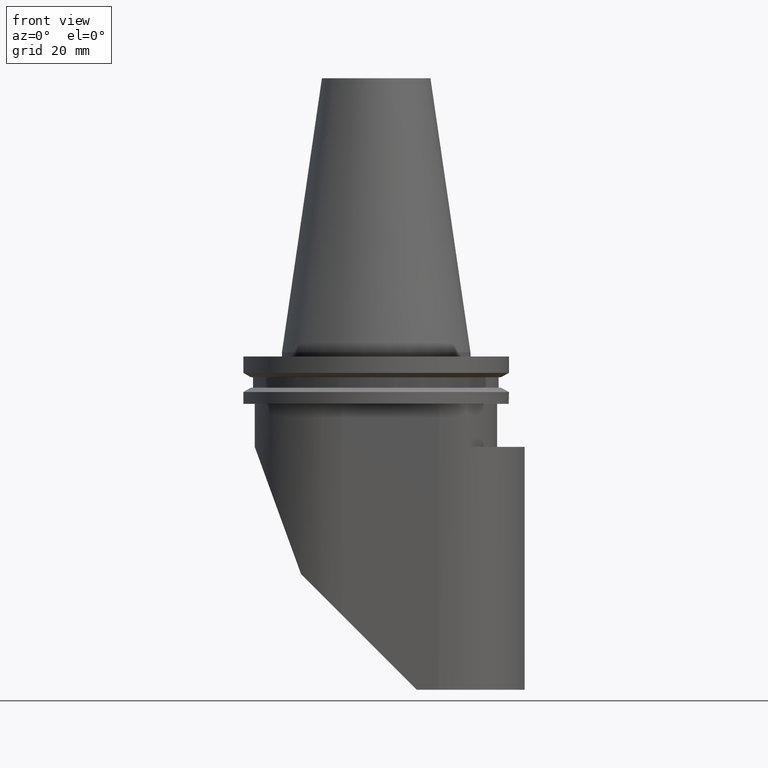
[diagram: clean part render]
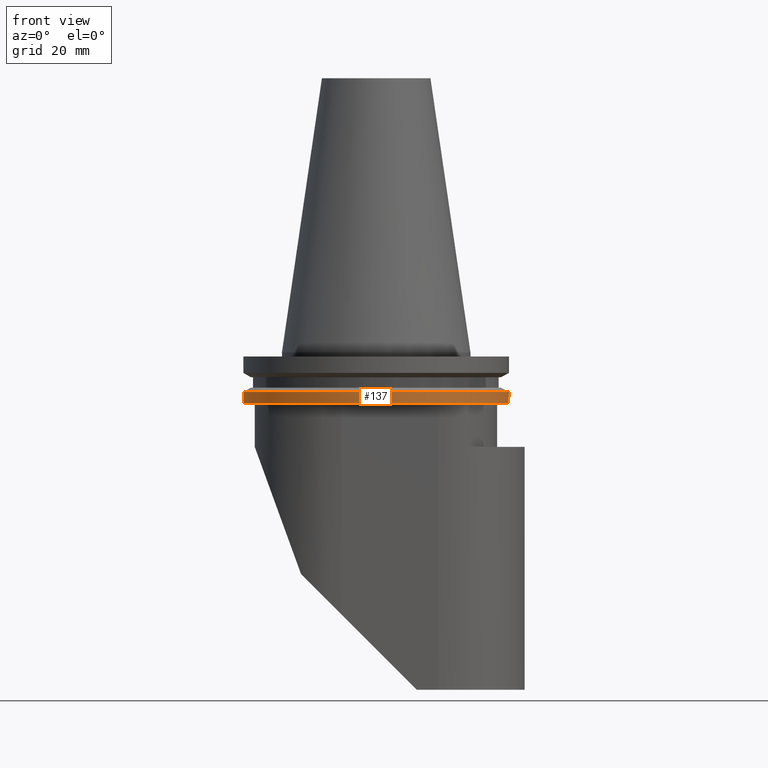
[diagram: same view with one face highlighted and labeled with its STEP entity id]
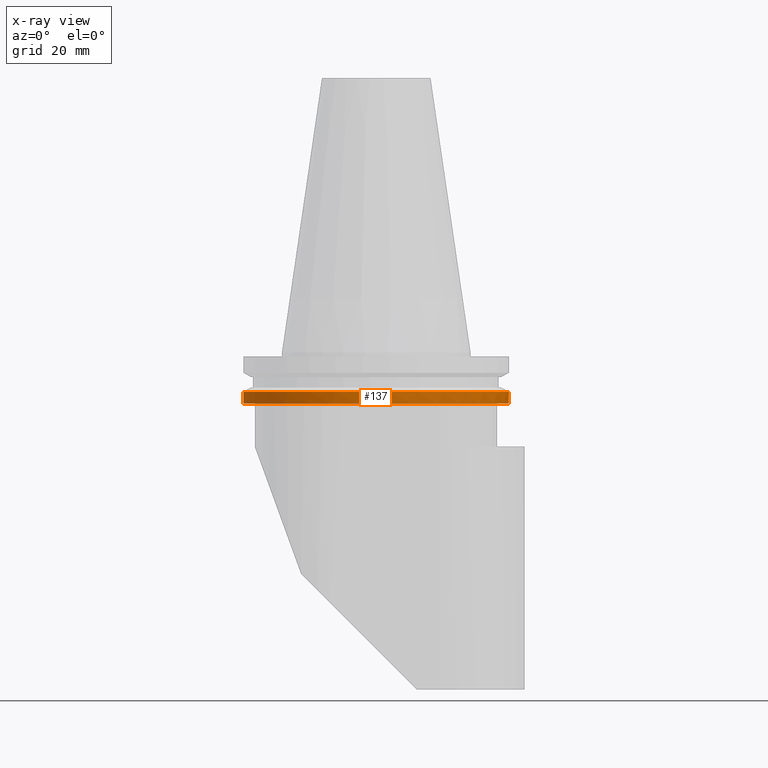
[diagram: x-ray of the same camera — body ghosted, the highlighted face saturated]
A machine part, front view. The second image highlights one B-rep face of the part: STEP entity #137.
The next image is the same camera in x-ray: the body ghosted, the highlighted face saturated — about 0% of this face is hidden behind the body in this view.
In plain terms, the highlighted cylindrical surface (bore or boss wall) has radius 49.2125 mm, axis along (-0, -0, -1).
Its self-contained STEP definition (entity closure, byte-faithful):
#137=ADVANCED_FACE('Unnamed[1]',(#383,#384),#385,.T.);
#194=EDGE_CURVE('Unnamed[1]',#473,#473,#474,.T.);
#271=EDGE_CURVE('Unnamed[1]',#577,#577,#578,.T.);
#383=FACE_BOUND('',#706,.T.);
#384=FACE_BOUND('',#707,.T.);
#385=CYLINDRICAL_SURFACE('',#708,49.2125);
#473=VERTEX_POINT('',#849);
#474=CIRCLE('',#850,49.2125);
#577=VERTEX_POINT('',#1003);
#578=CIRCLE('',#1004,49.2125);
#706=EDGE_LOOP('',(#1183));
#707=EDGE_LOOP('',(#1184));
#708=AXIS2_PLACEMENT_3D('',#1185,#1186,#1187);
#849=CARTESIAN_POINT('',(-28.4637434895837,40.1458025553007,-19.0499999999999));
#850=AXIS2_PLACEMENT_3D('',#1269,#1270,#1271);
#1003=CARTESIAN_POINT('',(-49.2125000000001,8.14337052772295E-015,-14.6461667699999));
#1004=AXIS2_PLACEMENT_3D('',#1404,#1405,#1406);
#1183=ORIENTED_EDGE('',*,*,#194,.F.);
#1184=ORIENTED_EDGE('',*,*,#271,.T.);
#1185=CARTESIAN_POINT('',(-1.6695328302898E-013,-1.03164756946037E-015,-16.848083385));
#1186=DIRECTION('',(-1.28076709777704E-015,-6.12323399573674E-017,-1.0));
#1187=DIRECTION('',(-1.0,1.83697019872103E-016,1.28076709777704E-015));
#1269=CARTESIAN_POINT('',(-1.69773425381521E-013,-1.16647607618782E-015,-19.05));
#1270=DIRECTION('',(-1.28076709777704E-015,-6.12323399573674E-017,-1.0));
#1271=DIRECTION('',(-1.0,1.83697019872103E-016,1.28076709777704E-015));
#1404=CARTESIAN_POINT('',(-1.64133140676439E-013,-8.96819062732912E-016,-14.64616677));
#1405=DIRECTION('',(-1.28076709777704E-015,-6.12323399573674E-017,-1.0));
#1406=DIRECTION('',(-1.0,1.83697019872103E-016,1.28076709777704E-015));